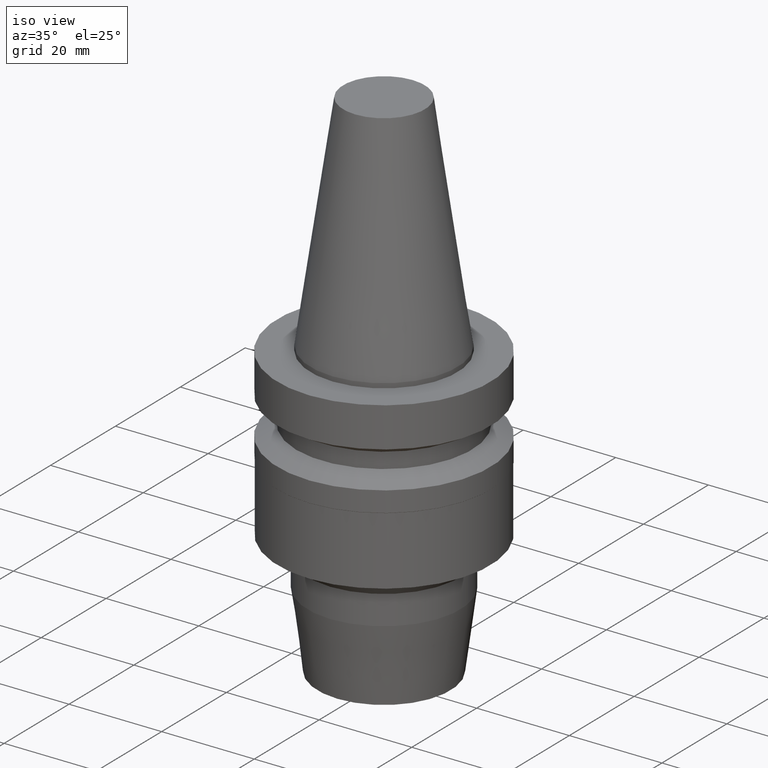
[diagram: clean part render]
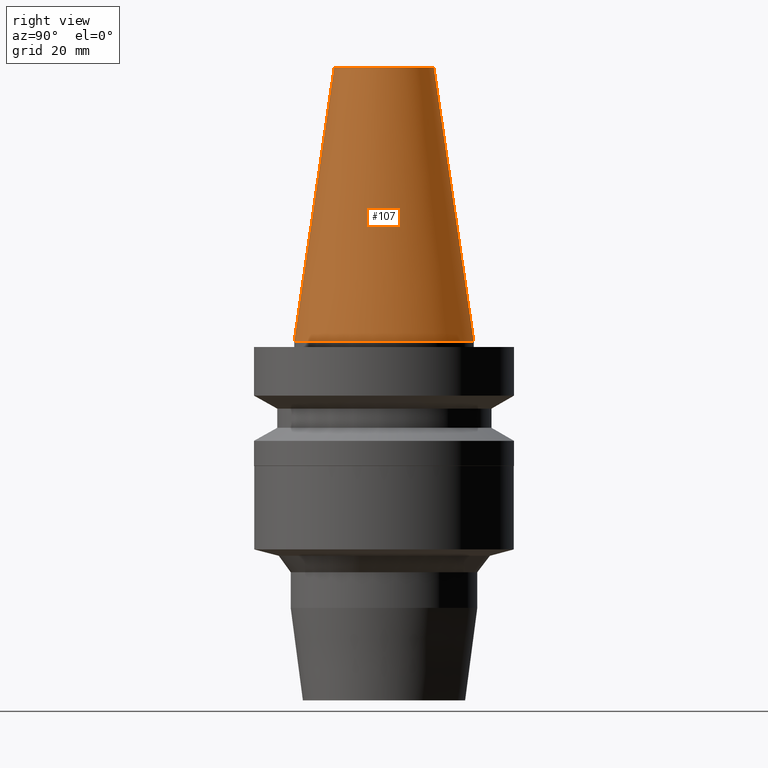
[diagram: tour spotlight — one face highlighted and labeled with its STEP entity id]
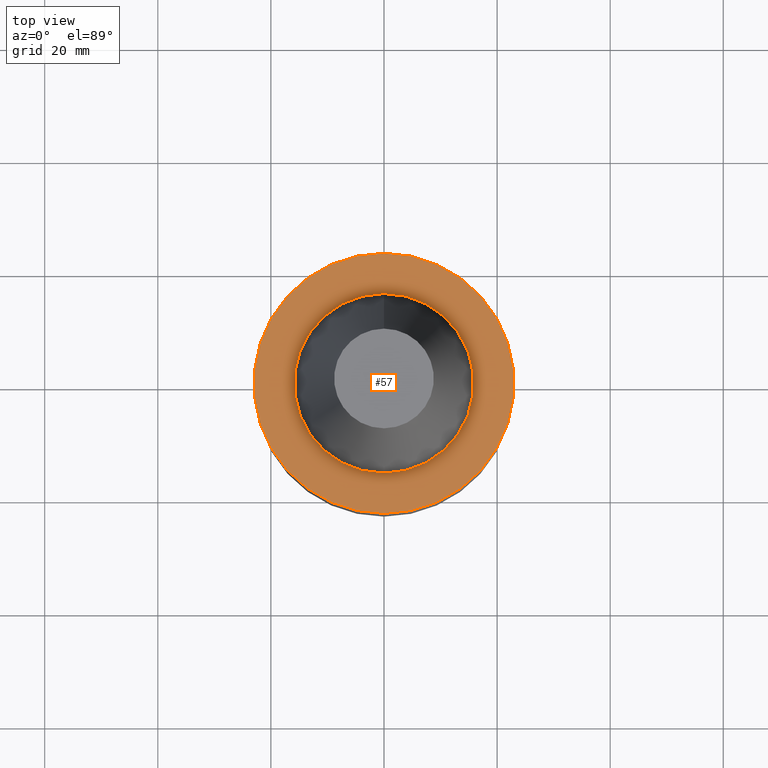
[diagram: tour spotlight — one face highlighted and labeled with its STEP entity id]
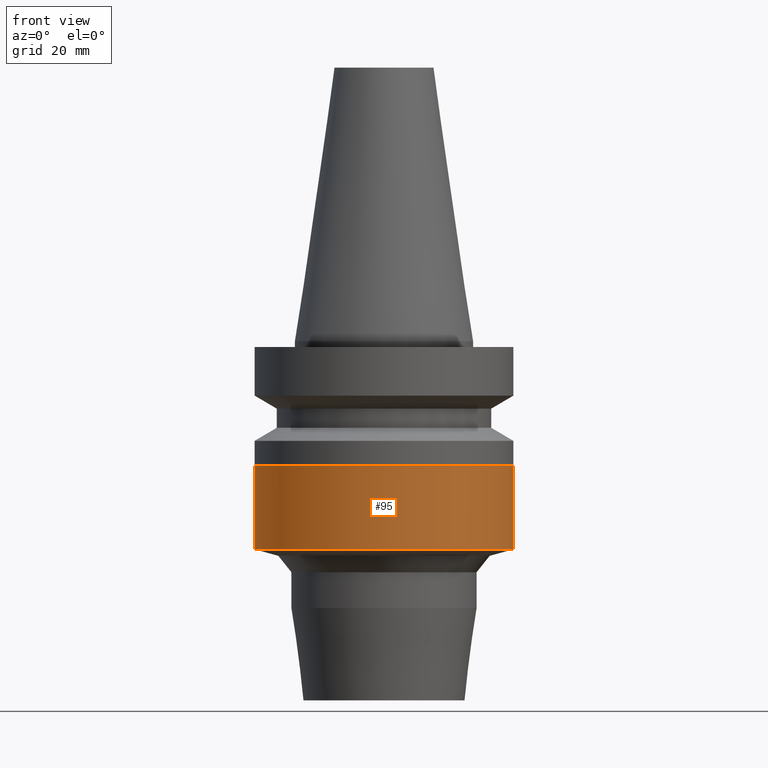
[diagram: tour spotlight — one face highlighted and labeled with its STEP entity id]
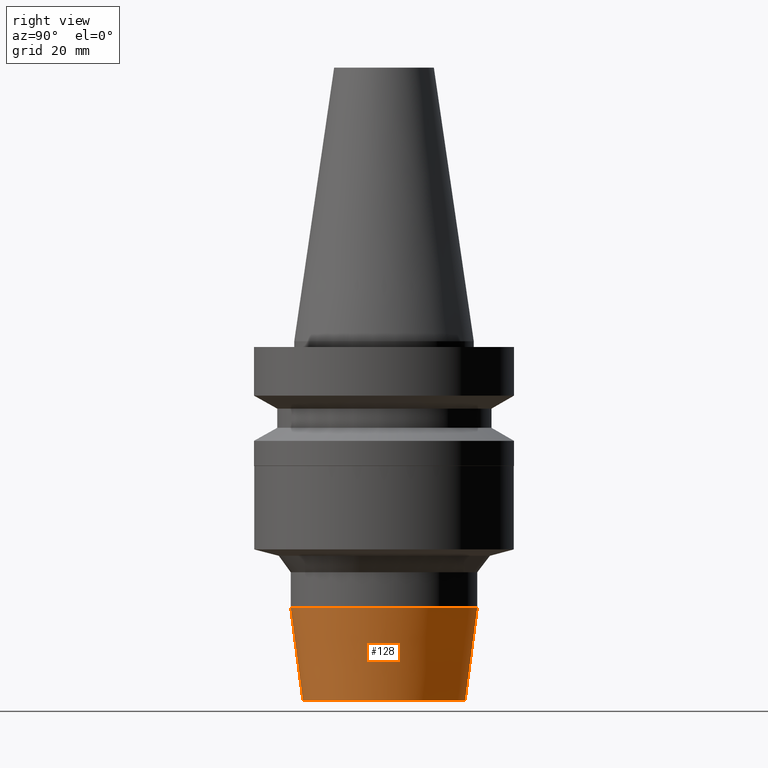
[diagram: tour spotlight — one face highlighted and labeled with its STEP entity id]
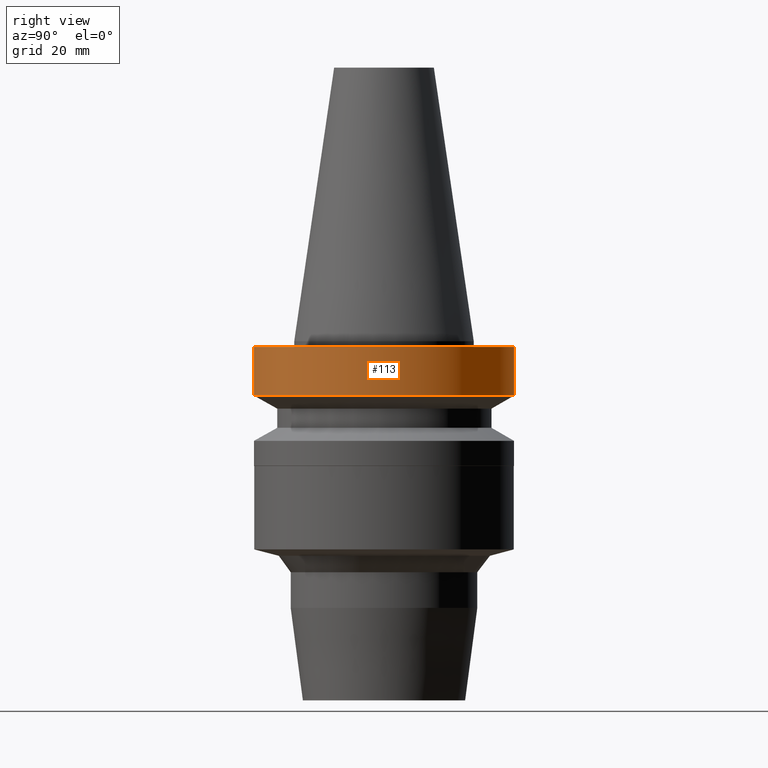
[diagram: tour spotlight — one face highlighted and labeled with its STEP entity id]
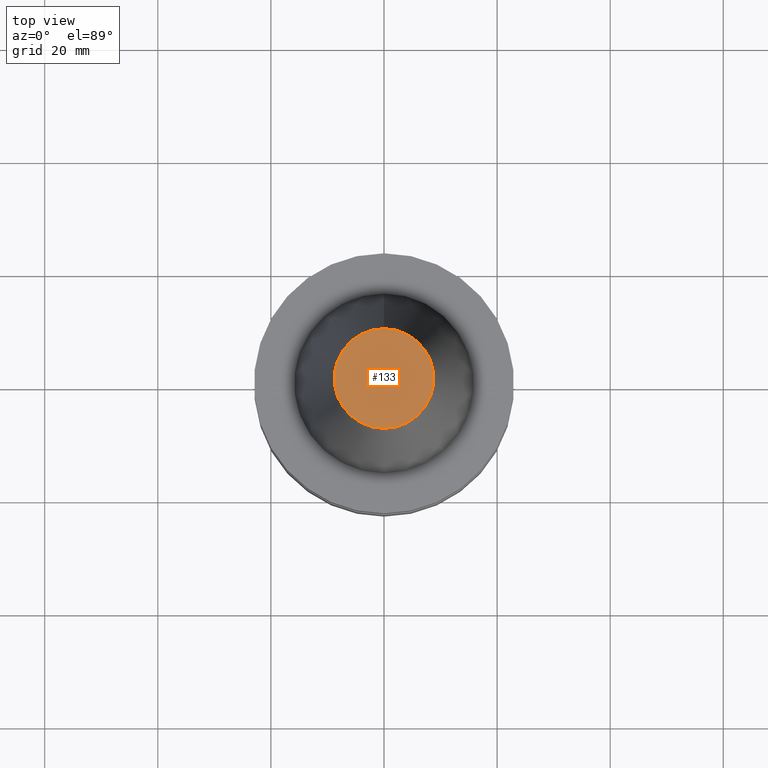
[diagram: tour spotlight — one face highlighted and labeled with its STEP entity id]
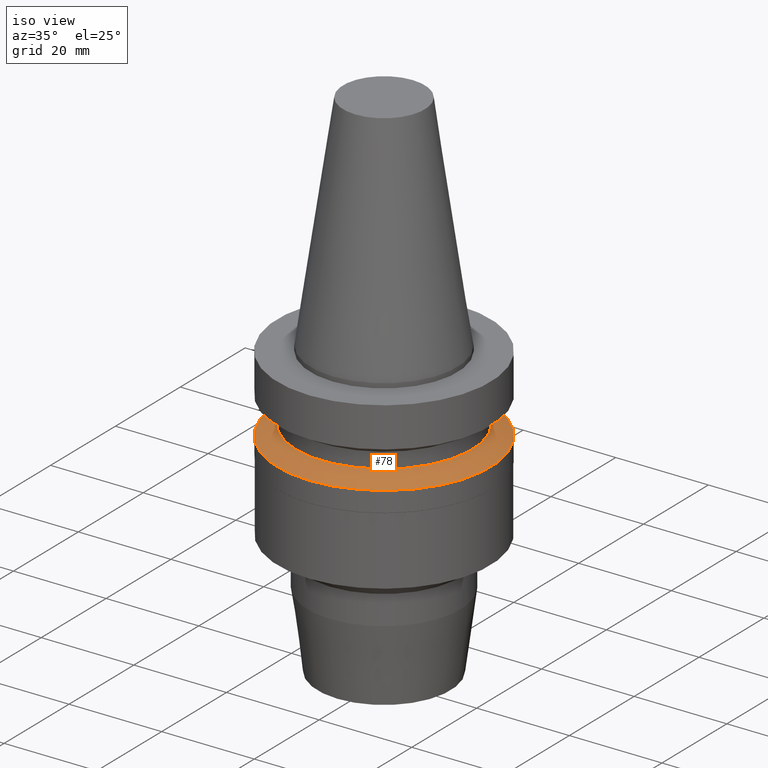
[diagram: tour spotlight — one face highlighted and labeled with its STEP entity id]
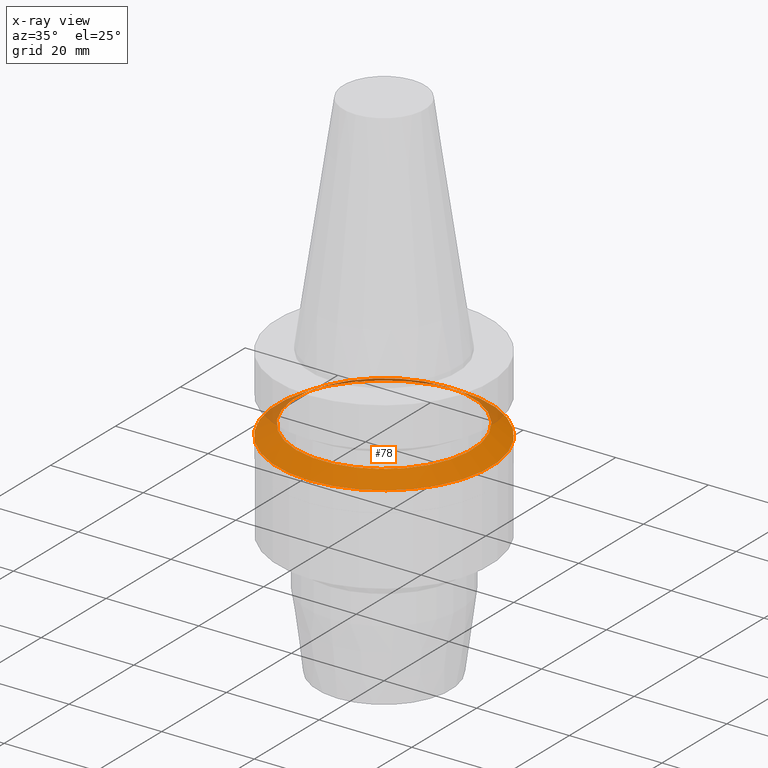
[diagram: x-ray of the same camera — body ghosted, this tour face saturated]
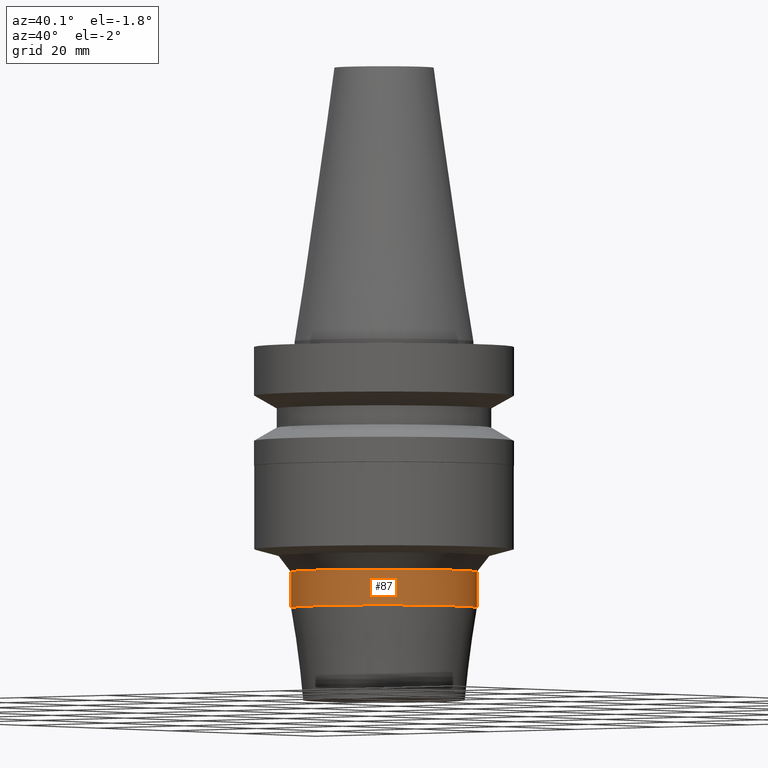
[diagram: tour spotlight — one face highlighted and labeled with its STEP entity id]
A machine part: a face-by-face anatomy tour. The part has 16 B-rep faces; the first image is the clean iso view, then the 8 largest visible faces are spotlighted one at a time (largest first), each with its STEP entity span.

Face 1 — right view, entity #107. In plain terms, the highlighted conical surface has half-angle 8.297 deg.
Definition (entity closure, byte-faithful):
#89=EDGE_CURVE('Unnamed[1]',#203,#203,#204,.T.);
#107=ADVANCED_FACE('Unnamed[1]',(#231,#232),#233,.T.);
#125=EDGE_CURVE('Unnamed[1]',#261,#261,#262,.T.);
#203=VERTEX_POINT('',#348);
#204=CIRCLE('',#349,8.81650000198669);
#231=FACE_BOUND('',#383,.T.);
#232=FACE_BOUND('',#384,.T.);
#233=CONICAL_SURFACE('',#385,12.3457500009933,0.144815870013618);
#261=VERTEX_POINT('',#420);
#262=CIRCLE('',#421,15.875);
#348=CARTESIAN_POINT('',(-2.96364525393659E-015,8.81650000198669,48.4));
#349=AXIS2_PLACEMENT_3D('',#496,#497,#498);
#383=EDGE_LOOP('',(#527));
#384=EDGE_LOOP('',(#528));
#385=AXIS2_PLACEMENT_3D('',#529,#530,#531);
#420=CARTESIAN_POINT('',(-1.95674482349743E-031,15.875,1.94412679364642E-015));
#421=AXIS2_PLACEMENT_3D('',#562,#563,#564);
#496=CARTESIAN_POINT('',(-2.96364525393659E-015,-5.92729050787319E-015,48.4));
#497=DIRECTION('',(6.12323399573677E-017,1.22464679914735E-016,-1.0));
#498=DIRECTION('',(-1.23259516440783E-032,1.0,1.22464679914735E-016));
#527=ORIENTED_EDGE('',*,*,#125,.F.);
#528=ORIENTED_EDGE('',*,*,#89,.T.);
#529=CARTESIAN_POINT('',(-1.4818226269683E-015,-2.96364525393659E-015,24.2));
#530=DIRECTION('',(6.12323399573677E-017,1.22464679914735E-016,-1.0));
#531=DIRECTION('',(-1.23259516440783E-032,1.0,1.22464679914735E-016));
#562=CARTESIAN_POINT('',(0.0,0.0,0.0));
#563=DIRECTION('',(6.12323399573677E-017,1.22464679914735E-016,-1.0));
#564=DIRECTION('',(-1.23259516440783E-032,1.0,1.22464679914735E-016));

Face 2 — top view, entity #57. In plain terms, the highlighted planar face has unit normal (-0, -0, 1).
Definition (entity closure, byte-faithful):
#57=ADVANCED_FACE('Unnamed[1]',(#154,#155),#156,.T.);
#72=EDGE_CURVE('Unnamed[1]',#177,#177,#178,.T.);
#97=EDGE_CURVE('Unnamed[1]',#216,#216,#217,.T.);
#154=FACE_OUTER_BOUND('',#287,.T.);
#155=FACE_BOUND('',#288,.T.);
#156=PLANE('',#289);
#177=VERTEX_POINT('',#315);
#178=CIRCLE('',#316,15.875);
#216=VERTEX_POINT('',#364);
#217=CIRCLE('',#365,23.0);
#287=EDGE_LOOP('',(#443));
#288=EDGE_LOOP('',(#444));
#289=AXIS2_PLACEMENT_3D('',#445,#446,#447);
#315=CARTESIAN_POINT('',(6.12323399573675E-017,15.875,-0.999999999999998));
#316=AXIS2_PLACEMENT_3D('',#467,#468,#469);
#364=CARTESIAN_POINT('',(6.12323399573674E-017,23.0,-0.999999999999997));
#365=AXIS2_PLACEMENT_3D('',#511,#512,#513);
#443=ORIENTED_EDGE('',*,*,#97,.F.);
#444=ORIENTED_EDGE('',*,*,#72,.T.);
#445=CARTESIAN_POINT('',(6.12323399573674E-017,19.4375,-0.999999999999998));
#446=DIRECTION('',(-6.12323399573677E-017,-1.22464679914735E-016,1.0));
#447=DIRECTION('',(1.23259516440783E-032,-1.0,-1.22464679914735E-016));
#467=CARTESIAN_POINT('',(6.12323399573677E-017,1.22464679914735E-016,-1.0));
#468=DIRECTION('',(6.12323399573677E-017,1.22464679914735E-016,-1.0));
#469=DIRECTION('',(-1.23259516440783E-032,1.0,1.22464679914735E-016));
#511=CARTESIAN_POINT('',(6.12323399573677E-017,1.22464679914735E-016,-1.0));
#512=DIRECTION('',(6.12323399573677E-017,1.22464679914735E-016,-1.0));
#513=DIRECTION('',(-1.23259516440783E-032,1.0,1.22464679914735E-016));

Face 3 — front view, entity #95. In plain terms, the highlighted cylindrical surface (bore or boss wall) has radius 22.95 mm, axis along (0, 0, -1).
Definition (entity closure, byte-faithful):
#80=EDGE_CURVE('Unnamed[1]',#189,#189,#190,.T.);
#95=ADVANCED_FACE('Unnamed[1]',(#212,#213),#214,.T.);
#130=EDGE_CURVE('Unnamed[1]',#269,#269,#270,.T.);
#189=VERTEX_POINT('',#330);
#190=CIRCLE('',#331,22.95);
#212=FACE_BOUND('',#359,.T.);
#213=FACE_BOUND('',#360,.T.);
#214=CYLINDRICAL_SURFACE('',#361,22.95);
#269=VERTEX_POINT('',#430);
#270=CIRCLE('',#431,22.95);
#330=CARTESIAN_POINT('',(1.35017309606003E-015,22.95,-22.0500000000012));
#331=AXIS2_PLACEMENT_3D('',#481,#482,#483);
#359=EDGE_LOOP('',(#506));
#360=EDGE_LOOP('',(#507));
#361=AXIS2_PLACEMENT_3D('',#508,#509,#510);
#430=CARTESIAN_POINT('',(2.25335011043121E-015,22.95,-36.8000000000013));
#431=AXIS2_PLACEMENT_3D('',#571,#572,#573);
#481=CARTESIAN_POINT('',(1.35017309606003E-015,2.70034619212006E-015,-22.0500000000012));
#482=DIRECTION('',(6.12323399573677E-017,1.22464679914735E-016,-1.0));
#483=DIRECTION('',(-1.23259516440783E-032,1.0,1.22464679914735E-016));
#506=ORIENTED_EDGE('',*,*,#130,.F.);
#507=ORIENTED_EDGE('',*,*,#80,.T.);
#508=CARTESIAN_POINT('',(1.80176160324562E-015,3.60352320649124E-015,-29.4250000000013));
#509=DIRECTION('',(6.12323399573677E-017,1.22464679914735E-016,-1.0));
#510=DIRECTION('',(-1.23259516440783E-032,1.0,1.22464679914735E-016));
#571=CARTESIAN_POINT('',(2.25335011043121E-015,4.50670022086242E-015,-36.8000000000013));
#572=DIRECTION('',(6.12323399573677E-017,1.22464679914735E-016,-1.0));
#573=DIRECTION('',(-1.23259516440783E-032,1.0,1.22464679914735E-016));

Face 4 — right view, entity #128. In plain terms, the highlighted conical surface has half-angle 7.5 deg.
Definition (entity closure, byte-faithful):
#59=EDGE_CURVE('Unnamed[1]',#158,#158,#159,.T.);
#64=EDGE_CURVE('Unnamed[1]',#166,#166,#167,.T.);
#128=ADVANCED_FACE('Unnamed[1]',(#265,#266),#267,.T.);
#158=VERTEX_POINT('',#292);
#159=CIRCLE('',#293,14.3453653554406);
#166=VERTEX_POINT('',#302);
#167=CIRCLE('',#303,16.5000000000001);
#265=FACE_BOUND('',#425,.T.);
#266=FACE_BOUND('',#426,.T.);
#267=CONICAL_SURFACE('',#427,15.4226826777203,0.130899693899549);
#292=CARTESIAN_POINT('',(3.88825358729292E-015,14.3453653554406,-63.5000000000013));
#293=AXIS2_PLACEMENT_3D('',#448,#449,#450);
#302=CARTESIAN_POINT('',(2.88612052140079E-015,16.5000000000001,-47.1339250371653));
#303=AXIS2_PLACEMENT_3D('',#457,#458,#459);
#425=EDGE_LOOP('',(#566));
#426=EDGE_LOOP('',(#567));
#427=AXIS2_PLACEMENT_3D('',#568,#569,#570);
#448=CARTESIAN_POINT('',(3.88825358729292E-015,7.77650717458585E-015,-63.5000000000013));
#449=DIRECTION('',(6.12323399573677E-017,1.22464679914735E-016,-1.0));
#450=DIRECTION('',(-1.23259516440783E-032,1.0,1.22464679914735E-016));
#457=CARTESIAN_POINT('',(2.88612052140079E-015,5.77224104280158E-015,-47.1339250371653));
#458=DIRECTION('',(6.12323399573677E-017,1.22464679914735E-016,-1.0));
#459=DIRECTION('',(-1.23259516440783E-032,1.0,1.22464679914735E-016));
#566=ORIENTED_EDGE('',*,*,#59,.F.);
#567=ORIENTED_EDGE('',*,*,#64,.T.);
#568=CARTESIAN_POINT('',(3.38718705434686E-015,6.77437410869371E-015,-55.3169625185833));
#569=DIRECTION('',(-6.12323399573677E-017,-1.22464679914735E-016,1.0));
#570=DIRECTION('',(-1.23259516440783E-032,1.0,1.22464679914735E-016));

Face 5 — right view, entity #113. In plain terms, the highlighted cylindrical surface (bore or boss wall) has radius 23 mm, axis along (0, 0, -1).
Definition (entity closure, byte-faithful):
#97=EDGE_CURVE('Unnamed[1]',#216,#216,#217,.T.);
#102=EDGE_CURVE('Unnamed[1]',#224,#224,#225,.T.);
#113=ADVANCED_FACE('Unnamed[1]',(#241,#242),#243,.T.);
#216=VERTEX_POINT('',#364);
#217=CIRCLE('',#365,23.0);
#224=VERTEX_POINT('',#374);
#225=CIRCLE('',#375,23.0);
#241=FACE_BOUND('',#395,.T.);
#242=FACE_BOUND('',#396,.T.);
#243=CYLINDRICAL_SURFACE('',#397,23.0);
#364=CARTESIAN_POINT('',(6.12323399573674E-017,23.0,-0.999999999999997));
#365=AXIS2_PLACEMENT_3D('',#511,#512,#513);
#374=CARTESIAN_POINT('',(5.87830463590729E-016,23.0,-9.59999999999999));
#375=AXIS2_PLACEMENT_3D('',#520,#521,#522);
#395=EDGE_LOOP('',(#539));
#396=EDGE_LOOP('',(#540));
#397=AXIS2_PLACEMENT_3D('',#541,#542,#543);
#511=CARTESIAN_POINT('',(6.12323399573677E-017,1.22464679914735E-016,-1.0));
#512=DIRECTION('',(6.12323399573677E-017,1.22464679914735E-016,-1.0));
#513=DIRECTION('',(-1.23259516440783E-032,1.0,1.22464679914735E-016));
#520=CARTESIAN_POINT('',(5.87830463590729E-016,1.17566092718146E-015,-9.59999999999999));
#521=DIRECTION('',(6.12323399573677E-017,1.22464679914735E-016,-1.0));
#522=DIRECTION('',(-1.23259516440783E-032,1.0,1.22464679914735E-016));
#539=ORIENTED_EDGE('',*,*,#102,.F.);
#540=ORIENTED_EDGE('',*,*,#97,.T.);
#541=CARTESIAN_POINT('',(3.24531401774048E-016,6.49062803548097E-016,-5.3));
#542=DIRECTION('',(6.12323399573677E-017,1.22464679914735E-016,-1.0));
#543=DIRECTION('',(-1.23259516440783E-032,1.0,1.22464679914735E-016));

Face 6 — top view, entity #133. In plain terms, the highlighted planar face has unit normal (-0, -0, 1).
Definition (entity closure, byte-faithful):
#89=EDGE_CURVE('Unnamed[1]',#203,#203,#204,.T.);
#133=ADVANCED_FACE('Unnamed[1]',(#273),#274,.T.);
#203=VERTEX_POINT('',#348);
#204=CIRCLE('',#349,8.81650000198669);
#273=FACE_OUTER_BOUND('',#435,.T.);
#274=PLANE('',#436);
#348=CARTESIAN_POINT('',(-2.96364525393659E-015,8.81650000198669,48.4));
#349=AXIS2_PLACEMENT_3D('',#496,#497,#498);
#435=EDGE_LOOP('',(#575));
#436=AXIS2_PLACEMENT_3D('',#576,#577,#578);
#496=CARTESIAN_POINT('',(-2.96364525393659E-015,-5.92729050787319E-015,48.4));
#497=DIRECTION('',(6.12323399573677E-017,1.22464679914735E-016,-1.0));
#498=DIRECTION('',(-1.23259516440783E-032,1.0,1.22464679914735E-016));
#575=ORIENTED_EDGE('',*,*,#89,.F.);
#576=CARTESIAN_POINT('',(-2.96364525393659E-015,4.40825000099334,48.4));
#577=DIRECTION('',(-6.12323399573677E-017,-1.22464679914735E-016,1.0));
#578=DIRECTION('',(1.23259516440783E-032,-1.0,-1.22464679914735E-016));

Face 7 — iso view, entity #78. An x-ray twin of the same camera follows (body ghosted, this face saturated) — the face is partly hidden behind the body. In plain terms, the highlighted conical surface has half-angle 60 deg.
Definition (entity closure, byte-faithful):
#78=ADVANCED_FACE('Unnamed[1]',(#185,#186),#187,.T.);
#118=EDGE_CURVE('Unnamed[1]',#250,#250,#251,.T.);
#123=EDGE_CURVE('Unnamed[1]',#258,#258,#259,.T.);
#185=FACE_BOUND('',#325,.T.);
#186=FACE_BOUND('',#326,.T.);
#187=CONICAL_SURFACE('',#327,21.0,1.04719755058882);
#250=VERTEX_POINT('',#406);
#251=CIRCLE('',#407,19.0);
#258=VERTEX_POINT('',#416);
#259=CIRCLE('',#417,23.0);
#325=EDGE_LOOP('',(#476));
#326=EDGE_LOOP('',(#477));
#327=AXIS2_PLACEMENT_3D('',#478,#479,#480);
#406=CARTESIAN_POINT('',(9.36279151221199E-016,19.0,-15.29059892));
#407=AXIS2_PLACEMENT_3D('',#550,#551,#552);
#416=CARTESIAN_POINT('',(1.07768918324967E-015,23.0,-17.6));
#417=AXIS2_PLACEMENT_3D('',#559,#560,#561);
#476=ORIENTED_EDGE('',*,*,#123,.F.);
#477=ORIENTED_EDGE('',*,*,#118,.T.);
#478=CARTESIAN_POINT('',(1.00698416723543E-015,2.01396833447087E-015,-16.44529946));
#479=DIRECTION('',(6.12323399573677E-017,1.22464679914735E-016,-1.0));
#480=DIRECTION('',(-1.23259516440783E-032,1.0,1.22464679914735E-016));
#550=CARTESIAN_POINT('',(9.36279151221199E-016,1.8725583024424E-015,-15.29059892));
#551=DIRECTION('',(6.12323399573677E-017,1.22464679914735E-016,-1.0));
#552=DIRECTION('',(-1.23259516440783E-032,1.0,1.22464679914735E-016));
#559=CARTESIAN_POINT('',(1.07768918324967E-015,2.15537836649934E-015,-17.6));
#560=DIRECTION('',(6.12323399573677E-017,1.22464679914735E-016,-1.0));
#561=DIRECTION('',(-1.23259516440783E-032,1.0,1.22464679914735E-016));

Face 8 — auxiliary view, entity #87. In plain terms, the highlighted cylindrical surface (bore or boss wall) has radius 16.5 mm, axis along (0, 0, -1).
Definition (entity closure, byte-faithful):
#64=EDGE_CURVE('Unnamed[1]',#166,#166,#167,.T.);
#84=EDGE_CURVE('Unnamed[1]',#195,#195,#196,.T.);
#87=ADVANCED_FACE('Unnamed[1]',(#199,#200),#201,.T.);
#166=VERTEX_POINT('',#302);
#167=CIRCLE('',#303,16.5000000000001);
#195=VERTEX_POINT('',#338);
#196=CIRCLE('',#339,16.5000000000001);
#199=FACE_BOUND('',#343,.T.);
#200=FACE_BOUND('',#344,.T.);
#201=CYLINDRICAL_SURFACE('',#345,16.5000000000001);
#302=CARTESIAN_POINT('',(2.88612052140079E-015,16.5000000000001,-47.1339250371653));
#303=AXIS2_PLACEMENT_3D('',#457,#458,#459);
#338=CARTESIAN_POINT('',(2.50013194786286E-015,16.5000000000001,-40.8302532551189));
#339=AXIS2_PLACEMENT_3D('',#487,#488,#489);
#343=EDGE_LOOP('',(#491));
#344=EDGE_LOOP('',(#492));
#345=AXIS2_PLACEMENT_3D('',#493,#494,#495);
#457=CARTESIAN_POINT('',(2.88612052140079E-015,5.77224104280158E-015,-47.1339250371653));
#458=DIRECTION('',(6.12323399573677E-017,1.22464679914735E-016,-1.0));
#459=DIRECTION('',(-1.23259516440783E-032,1.0,1.22464679914735E-016));
#487=CARTESIAN_POINT('',(2.50013194786286E-015,5.00026389572571E-015,-40.8302532551189));
#488=DIRECTION('',(6.12323399573677E-017,1.22464679914735E-016,-1.0));
#489=DIRECTION('',(-1.23259516440783E-032,1.0,1.22464679914735E-016));
#491=ORIENTED_EDGE('',*,*,#64,.F.);
#492=ORIENTED_EDGE('',*,*,#84,.T.);
#493=CARTESIAN_POINT('',(2.69312623463182E-015,5.38625246926365E-015,-43.9820891461421));
#494=DIRECTION('',(6.12323399573677E-017,1.22464679914735E-016,-1.0));
#495=DIRECTION('',(-1.23259516440783E-032,1.0,1.22464679914735E-016));